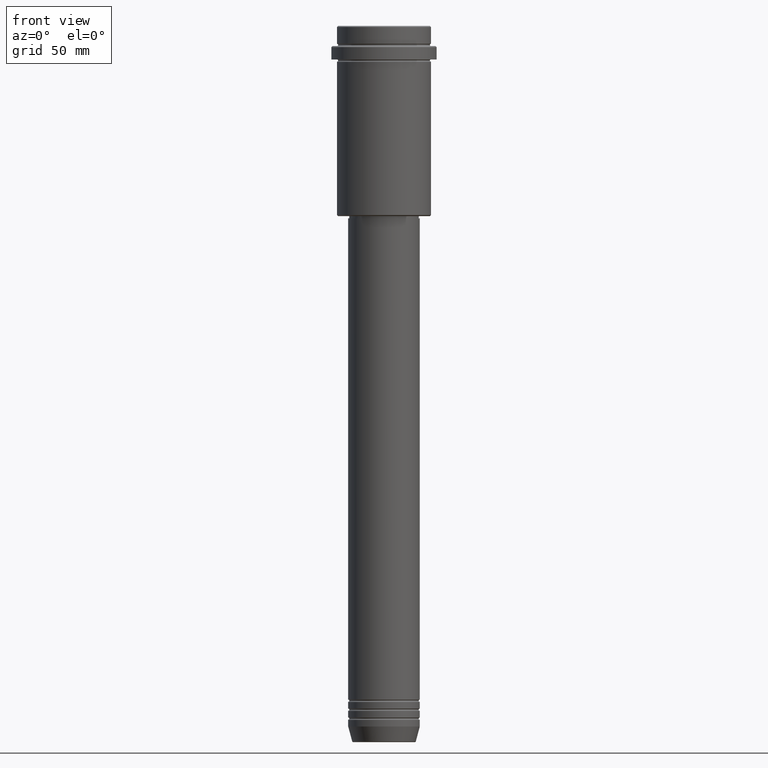
[diagram: clean part render]
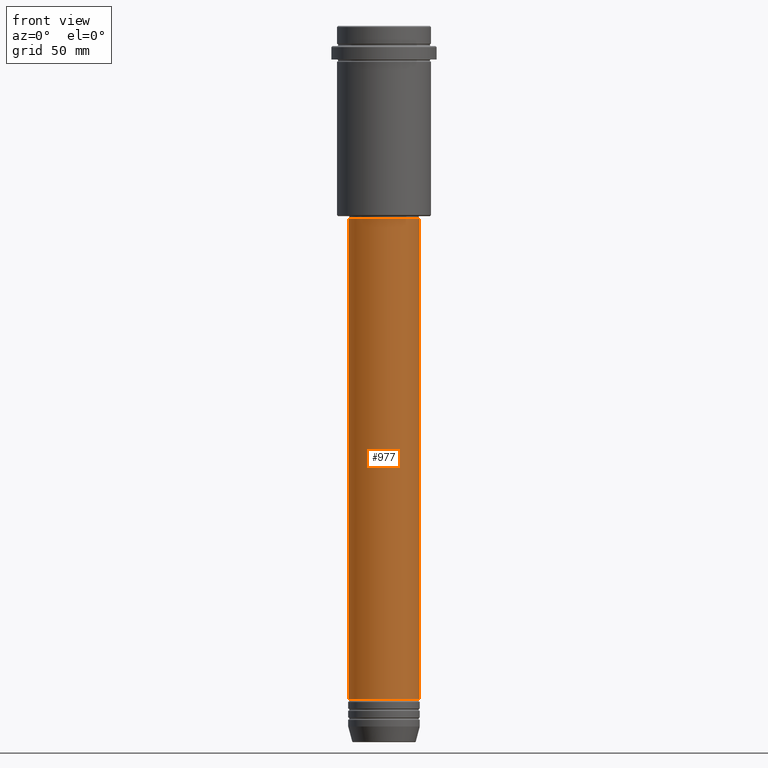
[diagram: same view with one face highlighted and labeled with its STEP entity id]
A machine part, front view. The second image highlights one B-rep face of the part: STEP entity #977.
In plain terms, the highlighted cylindrical surface (edge-blend (fillet) strip) has radius 16 mm, axis along (-0, -0, 1).
Its self-contained STEP definition (entity closure, byte-faithful):
#32 = DIRECTION ( 'NONE',  ( -0.000000000000000000, -0.000000000000000000, 1.000000000000000000 ) ) ;
#35 = DIRECTION ( 'NONE',  ( -0.000000000000000000, -0.000000000000000000, 1.000000000000000000 ) ) ;
#37 = EDGE_CURVE ( 'NONE', #377, #868, #209, .T. ) ;
#55 = LINE ( 'NONE', #244, #724 ) ;
#58 = DIRECTION ( 'NONE',  ( 1.000000000000000000, 0.000000000000000000, 0.000000000000000000 ) ) ;
#64 = CARTESIAN_POINT ( 'NONE',  ( -16.00000000000000355, 1.959434878635765526E-15, -85.99999999999994316 ) ) ;
#79 = VECTOR ( 'NONE', #1163, 1000.000000000000000 ) ;
#85 = AXIS2_PLACEMENT_3D ( 'NONE', #326, #211, #308 ) ;
#124 = CARTESIAN_POINT ( 'NONE',  ( 16.00000000000000355, 0.000000000000000000, -85.99999999999994316 ) ) ;
#197 = EDGE_LOOP ( 'NONE', ( #550, #781, #520, #912 ) ) ;
#209 = CIRCLE ( 'NONE', #958, 16.00000000000000355 ) ;
#211 = DIRECTION ( 'NONE',  ( -0.000000000000000000, -0.000000000000000000, 1.000000000000000000 ) ) ;
#244 = CARTESIAN_POINT ( 'NONE',  ( -16.00000000000000000, 1.959434878635765131E-15, 0.000000000000000000 ) ) ;
#308 = DIRECTION ( 'NONE',  ( 1.000000000000000000, 0.000000000000000000, 0.000000000000000000 ) ) ;
#326 = CARTESIAN_POINT ( 'NONE',  ( 0.000000000000000000, 0.000000000000000000, -300.9999999999998863 ) ) ;
#336 = EDGE_CURVE ( 'NONE', #1242, #868, #375, .T. ) ;
#375 = LINE ( 'NONE', #917, #79 ) ;
#377 = VERTEX_POINT ( 'NONE', #64 ) ;
#384 = DIRECTION ( 'NONE',  ( 1.000000000000000000, 0.000000000000000000, 0.000000000000000000 ) ) ;
#393 = EDGE_CURVE ( 'NONE', #790, #377, #55, .T. ) ;
#501 = CARTESIAN_POINT ( 'NONE',  ( 0.000000000000000000, 0.000000000000000000, 0.000000000000000000 ) ) ;
#520 = ORIENTED_EDGE ( 'NONE', *, *, #336, .T. ) ;
#546 = CARTESIAN_POINT ( 'NONE',  ( -16.00000000000000000, 1.959434878635765131E-15, -300.9999999999998863 ) ) ;
#550 = ORIENTED_EDGE ( 'NONE', *, *, #393, .F. ) ;
#558 = AXIS2_PLACEMENT_3D ( 'NONE', #501, #693, #384 ) ;
#693 = DIRECTION ( 'NONE',  ( -0.000000000000000000, -0.000000000000000000, 1.000000000000000000 ) ) ;
#724 = VECTOR ( 'NONE', #32, 1000.000000000000000 ) ;
#781 = ORIENTED_EDGE ( 'NONE', *, *, #787, .T. ) ;
#787 = EDGE_CURVE ( 'NONE', #790, #1242, #1254, .T. ) ;
#790 = VERTEX_POINT ( 'NONE', #546 ) ;
#798 = CARTESIAN_POINT ( 'NONE',  ( 16.00000000000000000, 0.000000000000000000, -300.9999999999998863 ) ) ;
#868 = VERTEX_POINT ( 'NONE', #124 ) ;
#912 = ORIENTED_EDGE ( 'NONE', *, *, #37, .F. ) ;
#917 = CARTESIAN_POINT ( 'NONE',  ( 16.00000000000000000, 0.000000000000000000, 0.000000000000000000 ) ) ;
#955 = FACE_OUTER_BOUND ( 'NONE', #197, .T. ) ;
#958 = AXIS2_PLACEMENT_3D ( 'NONE', #1061, #35, #58 ) ;
#977 = ADVANCED_FACE ( 'NONE', ( #955 ), #1382, .T. ) ;
#1061 = CARTESIAN_POINT ( 'NONE',  ( 0.000000000000000000, 0.000000000000000000, -85.99999999999994316 ) ) ;
#1163 = DIRECTION ( 'NONE',  ( -0.000000000000000000, -0.000000000000000000, 1.000000000000000000 ) ) ;
#1242 = VERTEX_POINT ( 'NONE', #798 ) ;
#1254 = CIRCLE ( 'NONE', #85, 16.00000000000000000 ) ;
#1382 = CYLINDRICAL_SURFACE ( 'NONE', #558, 16.00000000000000000 ) ;